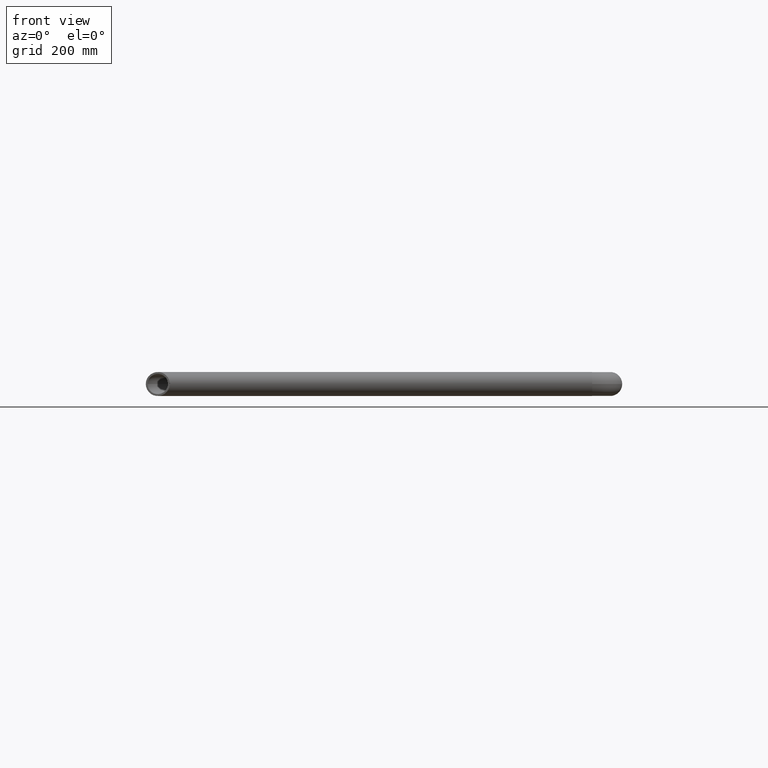
[diagram: clean part render]
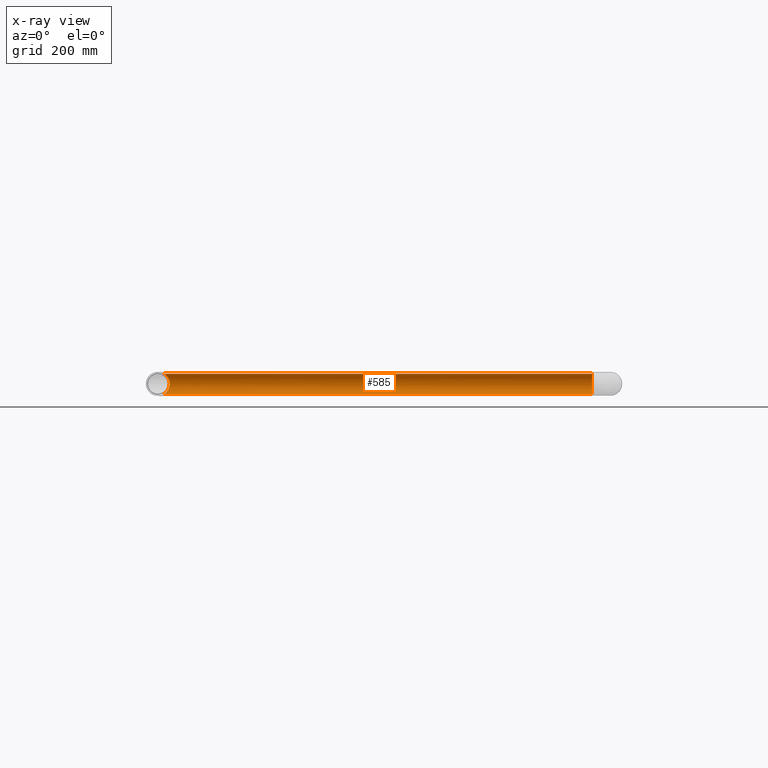
[diagram: x-ray — body ghosted, one internal face saturated and labeled with its STEP entity id]
A machine part, front view, then the same camera in x-ray: the body is ghosted and one INTERNAL B-rep face — a face not visible from any outside direction — is saturated and labeled: STEP entity #585.
In plain terms, the highlighted cylindrical surface (edge-blend (fillet) strip) has radius 18 mm, axis along (-1, -0, -0).
Its self-contained STEP definition (entity closure, byte-faithful):
#2 = EDGE_CURVE ( 'NONE', #4, #994, #626, .T. ) ;
#4 = VERTEX_POINT ( 'NONE', #1021 ) ;
#6 = CARTESIAN_POINT ( 'NONE',  ( -388.7446579452897026, 460.2707635070005949, 17.96586008529700251 ) ) ;
#9 = CARTESIAN_POINT ( 'NONE',  ( -382.0080483789542996, 473.0827717974850657, 11.22488983845225796 ) ) ;
#26 = CARTESIAN_POINT ( 'NONE',  ( -379.9736775309706331, 475.6017540251639844, -6.962232784754331938 ) ) ;
#34 = CARTESIAN_POINT ( 'NONE',  ( -380.9476410337406946, 474.4179015096626699, -9.360449323470723115 ) ) ;
#87 = CARTESIAN_POINT ( 'NONE',  ( -379.6930771773270976, 475.9393532835906626, 6.118123199508348264 ) ) ;
#114 = CARTESIAN_POINT ( 'NONE',  ( -385.2901658217552949, 468.5423065819202861, 15.27242393812087684 ) ) ;
#121 = CARTESIAN_POINT ( 'NONE',  ( -386.1916804801718968, 467.0859148480828367, 16.09132255713019077 ) ) ;
#122 = EDGE_CURVE ( 'NONE', #1015, #4, #461, .T. ) ;
#123 = CARTESIAN_POINT ( 'NONE',  ( -382.0137137217164423, 473.0755144615010863, -11.23382748865958014 ) ) ;
#131 = CARTESIAN_POINT ( 'NONE',  ( 368.0000000000000568, 459.0000000000000568, -17.99999999999996803 ) ) ;
#133 = CARTESIAN_POINT ( 'NONE',  ( -379.8777968933032412, 475.7172559798648308, -6.680265609117546965 ) ) ;
#160 = CARTESIAN_POINT ( 'NONE',  ( -378.9118222179898794, 476.8681713936258575, -2.197283961305060984 ) ) ;
#168 = LINE ( 'NONE', #615, #351 ) ;
#170 = EDGE_LOOP ( 'NONE', ( #324, #808, #1018, #1028, #1259 ) ) ;
#188 = DIRECTION ( 'NONE',  ( 0.000000000000000000, 1.000000000000000000, 0.000000000000000000 ) ) ;
#191 = CARTESIAN_POINT ( 'NONE',  ( -380.4775975410791489, 474.9924697479459041, 8.348987049291695328 ) ) ;
#214 = CARTESIAN_POINT ( 'NONE',  ( -378.8000000000001251, 477.0000000000002842, 0.6287812759073395652 ) ) ;
#221 = CARTESIAN_POINT ( 'NONE',  ( -379.3785612224718307, 476.3151469065566630, 4.955684489050730335 ) ) ;
#225 = CARTESIAN_POINT ( 'NONE',  ( -383.7638724171225704, 470.7665990861630121, 13.66691375950448517 ) ) ;
#235 = CARTESIAN_POINT ( 'NONE',  ( -383.7591311720456133, 470.7730238896368178, -13.66096562907672940 ) ) ;
#241 = CARTESIAN_POINT ( 'NONE',  ( -388.7866804768326006, 459.6311663365996196, -17.99173312333906694 ) ) ;
#243 = EDGE_CURVE ( 'NONE', #994, #1031, #1338, .T. ) ;
#248 = CARTESIAN_POINT ( 'NONE',  ( -388.7999999999998977, 459.3150820896042319, -17.99999999999996803 ) ) ;
#296 = CARTESIAN_POINT ( 'NONE',  ( -379.2431701476599528, 476.4760070489355144, -4.356202940367885468 ) ) ;
#324 = ORIENTED_EDGE ( 'NONE', *, *, #430, .F. ) ;
#339 = CARTESIAN_POINT ( 'NONE',  ( -388.7999999999998977, 459.0000000000000568, 17.99999999999996803 ) ) ;
#345 = CARTESIAN_POINT ( 'NONE',  ( -388.0119718861773777, 463.3120988140517511, 17.48652073941145346 ) ) ;
#346 = CARTESIAN_POINT ( 'NONE',  ( -382.5805670787471513, 472.3435473757759269, -12.09416102221687339 ) ) ;
#350 = CARTESIAN_POINT ( 'NONE',  ( -379.6133684952289968, 476.0345938804173329, -5.823750152877407160 ) ) ;
#351 = VECTOR ( 'NONE', #818, 1000.000000000000000 ) ;
#355 = CARTESIAN_POINT ( 'NONE',  ( -386.4847802026433783, 466.5772549323789349, -16.33722257887426110 ) ) ;
#403 = CARTESIAN_POINT ( 'NONE',  ( -379.0791847923172782, 476.6703627061774000, -3.443125533604552757 ) ) ;
#415 = CARTESIAN_POINT ( 'NONE',  ( -378.7999999999999545, 477.0000000000000568, -2.509518636939274958E-17 ) ) ;
#430 = EDGE_CURVE ( 'NONE', #1015, #1322, #168, .T. ) ;
#440 = CARTESIAN_POINT ( 'NONE',  ( -387.7911699517524653, 463.8851471294950670, 17.33419151732357832 ) ) ;
#442 = AXIS2_PLACEMENT_3D ( 'NONE', #1128, #834, #614 ) ;
#449 = FACE_OUTER_BOUND ( 'NONE', #170, .T. ) ;
#454 = CARTESIAN_POINT ( 'NONE',  ( -385.5984520244954297, 468.0617998141249814, -15.56260702578572008 ) ) ;
#461 = CIRCLE ( 'NONE', #634, 17.99999999999996092 ) ;
#486 = CARTESIAN_POINT ( 'NONE',  ( -379.0307671492647046, 476.7276456948566192, -3.135289230656268966 ) ) ;
#518 = DIRECTION ( 'NONE',  ( 1.000000000000000000, -6.033820786006284731E-16, 0.000000000000000000 ) ) ;
#535 = CARTESIAN_POINT ( 'NONE',  ( -378.9121988684698294, 476.8677269266281655, 2.200979971160475834 ) ) ;
#551 = CARTESIAN_POINT ( 'NONE',  ( -387.0421226276842503, 465.5316038699869523, 16.78273950670854830 ) ) ;
#563 = CARTESIAN_POINT ( 'NONE',  ( -379.6977848187664222, 475.9335032079686130, -6.111388157399324506 ) ) ;
#585 = ADVANCED_FACE ( 'NONE', ( #449 ), #816, .F. ) ;
#591 = CARTESIAN_POINT ( 'NONE',  ( -378.9470464994673762, 476.8265966081473266, -2.512352246925915189 ) ) ;
#612 = DIRECTION ( 'NONE',  ( -1.000000000000000000, -0.000000000000000000, -0.000000000000000000 ) ) ;
#614 = DIRECTION ( 'NONE',  ( 0.000000000000000000, 0.000000000000000000, 1.000000000000000000 ) ) ;
#615 = CARTESIAN_POINT ( 'NONE',  ( 368.0000000000000568, 459.0000000000000568, -17.99999999999996803 ) ) ;
#626 = LINE ( 'NONE', #1237, #972 ) ;
#634 = AXIS2_PLACEMENT_3D ( 'NONE', #810, #518, #188 ) ;
#647 = CARTESIAN_POINT ( 'NONE',  ( -382.8719255001270767, 471.9615272967714077, 12.50232604662443414 ) ) ;
#664 = CARTESIAN_POINT ( 'NONE',  ( -388.7999999999998977, 459.0000000000000568, -17.99999999999996803 ) ) ;
#716 = CARTESIAN_POINT ( 'NONE',  ( -379.3774289277795901, 476.3164954845525472, -4.951040515796442776 ) ) ;
#737 = CARTESIAN_POINT ( 'NONE',  ( -379.2442062961307556, 476.4747767811136328, 4.361147974268162031 ) ) ;
#753 = B_SPLINE_CURVE_WITH_KNOTS ( 'NONE', 3,
 ( #945, #929, #1359, #160, #591, #486, #403, #296, #716, #350, #563, #133, #26, #1004, #34, #1209, #123, #346, #869, #235, #1182, #1309, #454, #764, #355, #980, #896, #1188, #1098, #874, #777, #1087, #1197, #241, #248, #664 ),
 .UNSPECIFIED., .F., .F.,
 ( 4, 2, 2, 2, 2, 2, 2, 2, 2, 2, 2, 2, 2, 2, 2, 2, 2, 4 ),
 ( 0.03026374996323623681, 0.03215247899895441047, 0.03309684351681349557, 0.03404120803467258066, 0.03592993707039075779, 0.03687430158824984983, 0.03781866610610894186, 0.04159612417754519204, 0.04348485321326331365, 0.04537358224898144221, 0.04915104032041777565, 0.05103976935613593890, 0.05292849839185410910, 0.05481722742757227929, 0.05670595646329043560, 0.05859468549900860579, 0.05953905001686762150, 0.06048341453472663720 ),
 .UNSPECIFIED. ) ;
#759 = CARTESIAN_POINT ( 'NONE',  ( -385.5938639896023119, 468.0691281675173059, 15.55839306770460162 ) ) ;
#764 = CARTESIAN_POINT ( 'NONE',  ( -386.1944728514052940, 467.0811021297285492, -16.09368639184963357 ) ) ;
#777 = CARTESIAN_POINT ( 'NONE',  ( -388.5372939854856327, 461.5159753351007907, -17.83427789833606170 ) ) ;
#799 = CARTESIAN_POINT ( 'NONE',  ( -378.9475611316808568, 476.8259889241274436, 2.516688730692570708 ) ) ;
#808 = ORIENTED_EDGE ( 'NONE', *, *, #122, .T. ) ;
#810 = CARTESIAN_POINT ( 'NONE',  ( 368.0000000000000568, 459.0000000000000568, 0.000000000000000000 ) ) ;
#816 = CYLINDRICAL_SURFACE ( 'NONE', #442, 17.99999999999996803 ) ;
#818 = DIRECTION ( 'NONE',  ( -1.000000000000000000, -0.000000000000000000, -0.000000000000000000 ) ) ;
#834 = DIRECTION ( 'NONE',  ( -1.000000000000000000, -0.000000000000000000, -0.000000000000000000 ) ) ;
#841 = CARTESIAN_POINT ( 'NONE',  ( -378.8279178982468807, 476.9671449142524580, 1.257623577335715614 ) ) ;
#845 = CARTESIAN_POINT ( 'NONE',  ( -387.3062966244748395, 464.9949342544886690, 16.98233262306522917 ) ) ;
#869 = CARTESIAN_POINT ( 'NONE',  ( -382.8713646426500645, 471.9622419746679611, -12.50147196718645226 ) ) ;
#874 = CARTESIAN_POINT ( 'NONE',  ( -388.3867311285491155, 462.1214915113971529, -17.73759472526009162 ) ) ;
#891 = EDGE_CURVE ( 'NONE', #1031, #1322, #753, .T. ) ;
#896 = CARTESIAN_POINT ( 'NONE',  ( -387.3036150226138830, 465.0007706985509230, -16.98035222244167386 ) ) ;
#929 = CARTESIAN_POINT ( 'NONE',  ( -378.7999999999998977, 477.0000000000001137, -0.6278653263338519475 ) ) ;
#945 = CARTESIAN_POINT ( 'NONE',  ( -378.7999999999999545, 477.0000000000000568, -2.509518636939274958E-17 ) ) ;
#951 = CARTESIAN_POINT ( 'NONE',  ( -381.7339478832765849, 473.4308002192201457, 10.77406487041047001 ) ) ;
#972 = VECTOR ( 'NONE', #612, 1000.000000000000000 ) ;
#980 = CARTESIAN_POINT ( 'NONE',  ( -387.0393085637403487, 465.5370596329948967, -16.78053888457121801 ) ) ;
#994 = VERTEX_POINT ( 'NONE', #1158 ) ;
#1002 = CARTESIAN_POINT ( 'NONE',  ( -388.7999999999998977, 459.0000000000000568, -17.99999999999996803 ) ) ;
#1004 = CARTESIAN_POINT ( 'NONE',  ( -380.4751174099396280, 474.9954794054907552, -8.342624980602121099 ) ) ;
#1015 = VERTEX_POINT ( 'NONE', #131 ) ;
#1018 = ORIENTED_EDGE ( 'NONE', *, *, #2, .T. ) ;
#1021 = CARTESIAN_POINT ( 'NONE',  ( 368.0000000000000568, 459.0000000000000568, 17.99999999999996803 ) ) ;
#1028 = ORIENTED_EDGE ( 'NONE', *, *, #243, .T. ) ;
#1031 = VERTEX_POINT ( 'NONE', #1191 ) ;
#1072 = CARTESIAN_POINT ( 'NONE',  ( -382.5778945392532364, 472.3470557446718772, 12.09043904637261946 ) ) ;
#1087 = CARTESIAN_POINT ( 'NONE',  ( -388.6929124877547679, 460.5825149880754452, -17.93302947978935080 ) ) ;
#1098 = CARTESIAN_POINT ( 'NONE',  ( -388.0141488686128355, 463.3053829932879921, -17.48798596678321005 ) ) ;
#1128 = CARTESIAN_POINT ( 'NONE',  ( 368.0000000000000568, 459.0000000000000568, 0.000000000000000000 ) ) ;
#1158 = CARTESIAN_POINT ( 'NONE',  ( -388.7999999999998977, 459.0000000000000568, 17.99999999999996803 ) ) ;
#1172 = CARTESIAN_POINT ( 'NONE',  ( -379.8736113864766253, 475.7227462260323136, 6.686996860084086336 ) ) ;
#1181 = CARTESIAN_POINT ( 'NONE',  ( -386.4855180334141096, 466.5760468546352513, 16.33786119786905644 ) ) ;
#1182 = CARTESIAN_POINT ( 'NONE',  ( -384.3720532130246852, 469.9208056892479135, -14.35134818437358284 ) ) ;
#1188 = CARTESIAN_POINT ( 'NONE',  ( -387.7906834458750609, 463.8865599557788642, -17.33387268827559069 ) ) ;
#1191 = CARTESIAN_POINT ( 'NONE',  ( -378.7999999999999545, 477.0000000000000568, -2.509518636939274958E-17 ) ) ;
#1197 = CARTESIAN_POINT ( 'NONE',  ( -388.7331765099711447, 460.2653646791631559, -17.95827619663532104 ) ) ;
#1209 = CARTESIAN_POINT ( 'NONE',  ( -381.7365116603347701, 473.4275719554157149, -10.77857096724938657 ) ) ;
#1237 = CARTESIAN_POINT ( 'NONE',  ( 368.0000000000000568, 459.0000000000000568, 17.99999999999996803 ) ) ;
#1259 = ORIENTED_EDGE ( 'NONE', *, *, #891, .T. ) ;
#1272 = CARTESIAN_POINT ( 'NONE',  ( -384.3763625747896526, 469.9143767482174212, 14.35571564200661498 ) ) ;
#1284 = CARTESIAN_POINT ( 'NONE',  ( -388.7999999999999545, 459.6414746022293798, 17.99999999999997158 ) ) ;
#1287 = CARTESIAN_POINT ( 'NONE',  ( -380.9498928211779116, 474.4150550978370120, 9.364291298655251339 ) ) ;
#1290 = CARTESIAN_POINT ( 'NONE',  ( -388.5388446673158001, 461.5080264516368516, 17.83526764063500636 ) ) ;
#1297 = CARTESIAN_POINT ( 'NONE',  ( -388.3880332512528071, 462.1175551155273524, 17.73847383101663056 ) ) ;
#1309 = CARTESIAN_POINT ( 'NONE',  ( -385.2915104734248075, 468.5403083380364251, -15.27379503326027610 ) ) ;
#1322 = VERTEX_POINT ( 'NONE', #1002 ) ;
#1338 = B_SPLINE_CURVE_WITH_KNOTS ( 'NONE', 3,
 ( #339, #1284, #6, #1290, #1297, #345, #440, #845, #551, #1181, #121, #759, #114, #1272, #225, #647, #1072, #9, #951, #1287, #191, #1172, #87, #221, #737, #1378, #1371, #799, #535, #841, #214, #415 ),
 .UNSPECIFIED., .F., .F.,
 ( 4, 2, 2, 2, 2, 2, 2, 2, 2, 2, 2, 2, 2, 2, 2, 4 ),
 ( 0.000000000000000000, 0.001891484372702291689, 0.003782968745404583378, 0.005674453118106875284, 0.007565937490809166756, 0.009457421863511459095, 0.01134890623621375404, 0.01513187498161834392, 0.01702335935432059896, 0.01891484372702285227, 0.02269781247242727562, 0.02458929684512951505, 0.02648078121783175795, 0.02742652340418287246, 0.02837226559053399044, 0.03026374996323623681 ),
 .UNSPECIFIED. ) ;
#1359 = CARTESIAN_POINT ( 'NONE',  ( -378.8278369259920169, 476.9672400879401835, -1.255669804015577595 ) ) ;
#1371 = CARTESIAN_POINT ( 'NONE',  ( -379.0314758293318960, 476.7268075161517231, 3.140047543528071472 ) ) ;
#1378 = CARTESIAN_POINT ( 'NONE',  ( -379.0799864625697069, 476.6694136638517989, 3.447996458306350931 ) ) ;